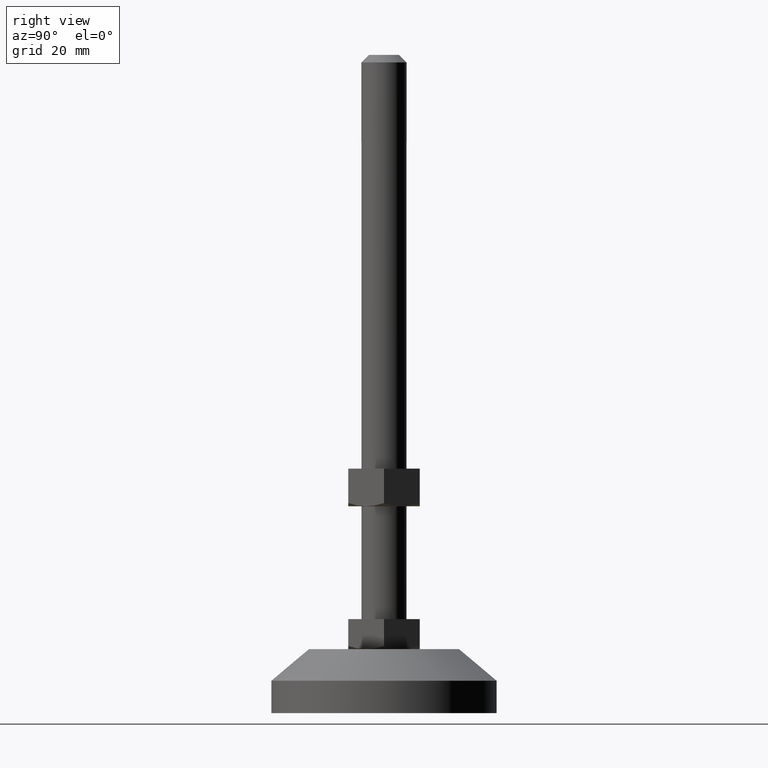
[diagram: clean part render]
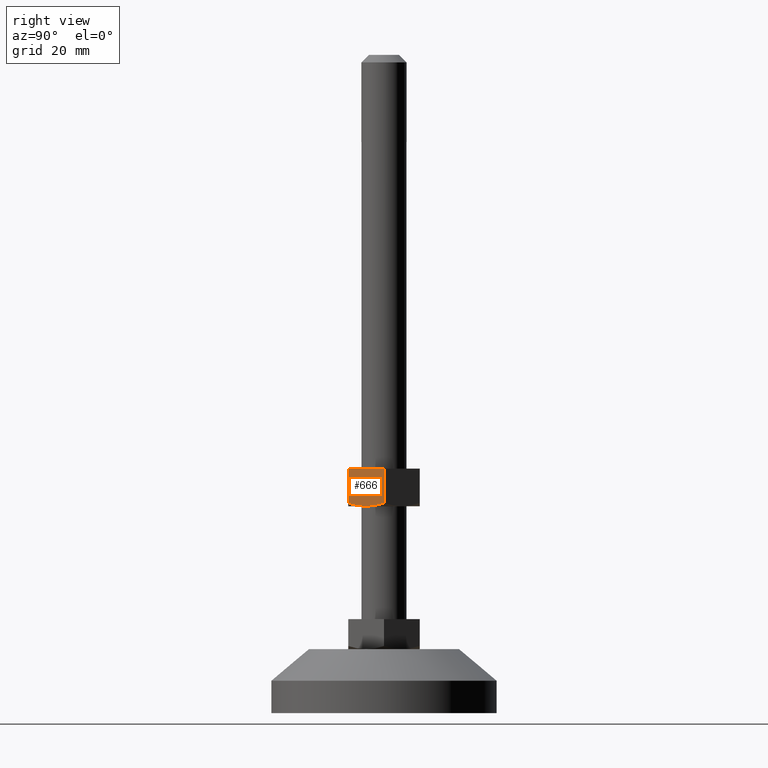
[diagram: same view with one face highlighted and labeled with its STEP entity id]
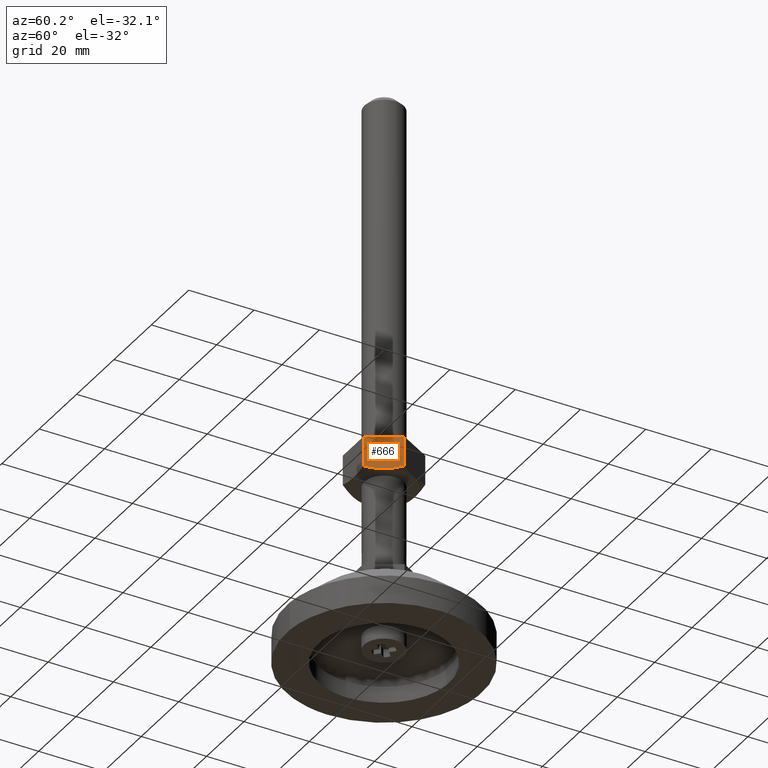
[diagram: same view with one face highlighted and labeled with its STEP entity id]
A machine part, right view. The second image highlights one B-rep face of the part: STEP entity #666.
A second angle (auxiliary view) of the same face is appended — the face is thin or edge-on in the first view.
In plain terms, the highlighted face is a freeform B-spline surface patch.
Its self-contained STEP definition (entity closure, byte-faithful):
#239=CARTESIAN_POINT('',(8.227241667976021,-4.749999709056900,55.0));
#240=VERTEX_POINT('',#239);
#400=CARTESIAN_POINT('',(10.969654999999999,-1.210243E-015,55.848505615153002));
#401=VERTEX_POINT('',#400);
#402=CARTESIAN_POINT('',(8.227241667976021,-4.749999709056900,55.0));
#403=CARTESIAN_POINT('',(8.342089602191916,-4.551077231638572,55.000001099214380));
#404=CARTESIAN_POINT('',(8.457494483676436,-4.351190093155818,55.004845908462848));
#405=CARTESIAN_POINT('',(8.689020401382992,-3.950175399672822,55.024220373767093));
#406=CARTESIAN_POINT('',(8.805251946535622,-3.748856437570646,55.038873664551808));
#407=CARTESIAN_POINT('',(9.152783477608571,-3.146914107358063,55.096877071955667));
#408=CARTESIAN_POINT('',(9.382917639881582,-2.748310005242610,55.154303556495158));
#409=CARTESIAN_POINT('',(10.069222903220041,-1.559594298855638,55.376053635708132));
#410=CARTESIAN_POINT('',(10.521312745618580,-0.776551642672317,55.589655093896468));
#411=CARTESIAN_POINT('',(10.969655000000030,4.571668E-014,55.848505615152682));
#412=B_SPLINE_CURVE_WITH_KNOTS('',3,(#402,#403,#404,#405,#406,#407,#408,#409,#410,#411),.UNSPECIFIED.,.F.,.U.,(4,2,2,2,4),(0.500936481714865,0.562500000000000,0.625000000000000,0.750000000000000,1.0),.UNSPECIFIED.);
#413=EDGE_CURVE('',#240,#401,#412,.T.);
#446=CARTESIAN_POINT('',(5.484827999999999,-9.499999999999890,55.848505809115103));
#447=VERTEX_POINT('',#446);
#465=CARTESIAN_POINT('',(5.484827999999999,-9.499999999999890,55.848505809115103));
#466=CARTESIAN_POINT('',(5.932612061584632,-8.724415175710263,55.589977536867039));
#467=CARTESIAN_POINT('',(6.383660836356551,-7.943175701733564,55.376903389261948));
#468=CARTESIAN_POINT('',(7.067289200451357,-6.759096521314454,55.155520713464938));
#469=CARTESIAN_POINT('',(7.296344008677906,-6.362361915436789,55.098137173135221));
#470=CARTESIAN_POINT('',(7.757121243271381,-5.564272253057670,55.020510950032516));
#471=CARTESIAN_POINT('',(7.988845974750929,-5.162913203983612,55.000300361005863));
#472=CARTESIAN_POINT('',(8.223747747547632,-4.756051357371376,55.000001100235863));
#473=CARTESIAN_POINT('',(8.225494643370292,-4.753025644743564,54.999999995959278));
#474=CARTESIAN_POINT('',(8.227241668067153,-4.749999708899061,55.000000012490062));
#475=B_SPLINE_CURVE_WITH_KNOTS('',3,(#465,#466,#467,#468,#469,#470,#471,#472,#473,#474),.UNSPECIFIED.,.F.,.U.,(4,2,2,2,4),(0.0,0.250000000000000,0.375000000000000,0.500000000000000,0.500936481686323),.UNSPECIFIED.);
#476=EDGE_CURVE('',#447,#240,#475,.T.);
#587=CARTESIAN_POINT('',(5.484827999999999,-9.499999999999890,65.0));
#588=VERTEX_POINT('',#587);
#594=CARTESIAN_POINT('',(10.969654999999999,0.0,65.0));
#595=VERTEX_POINT('',#594);
#596=CARTESIAN_POINT('',(10.969654999999999,0.0,65.0));
#597=CARTESIAN_POINT('',(5.484827999999999,-9.499999999999890,65.0));
#598=QUASI_UNIFORM_CURVE('',1,(#596,#597),.UNSPECIFIED.,.F.,.U.);
#599=EDGE_CURVE('',#595,#588,#598,.T.);
#641=CARTESIAN_POINT('',(5.484827999999999,-9.499999999999890,65.0));
#642=CARTESIAN_POINT('',(5.484827999999999,-9.499999999999890,55.848505809115103));
#643=QUASI_UNIFORM_CURVE('',1,(#641,#642),.UNSPECIFIED.,.F.,.U.);
#644=EDGE_CURVE('',#588,#447,#643,.T.);
#650=CARTESIAN_POINT('',(5.210860901980652,-9.974524981587036,54.500500019381938));
#651=CARTESIAN_POINT('',(11.243622245133860,0.474525236397007,54.500500019381938));
#652=CARTESIAN_POINT('',(5.210860901980652,-9.974524981587036,65.499500248838970));
#653=CARTESIAN_POINT('',(11.243622245133860,0.474525236397007,65.499500248838970));
#654=B_SPLINE_SURFACE_WITH_KNOTS('',1,1,((#650,#652),(#651,#653)),.UNSPECIFIED.,.F.,.F.,.U.,(2,2),(2,2),(0.0,12.065523605770130),(0.0,10.999000229457030),.UNSPECIFIED.);
#655=ORIENTED_EDGE('',*,*,#644,.T.);
#656=ORIENTED_EDGE('',*,*,#476,.T.);
#657=ORIENTED_EDGE('',*,*,#413,.T.);
#658=CARTESIAN_POINT('',(10.969654999999999,0.0,65.0));
#659=CARTESIAN_POINT('',(10.969654999999999,-1.210243E-015,55.848505615153002));
#660=QUASI_UNIFORM_CURVE('',1,(#658,#659),.UNSPECIFIED.,.F.,.U.);
#661=EDGE_CURVE('',#595,#401,#660,.T.);
#662=ORIENTED_EDGE('',*,*,#661,.F.);
#663=ORIENTED_EDGE('',*,*,#599,.T.);
#664=EDGE_LOOP('',(#655,#656,#657,#662,#663));
#665=FACE_OUTER_BOUND('',#664,.T.);
#666=ADVANCED_FACE('',(#665),#654,.T.);